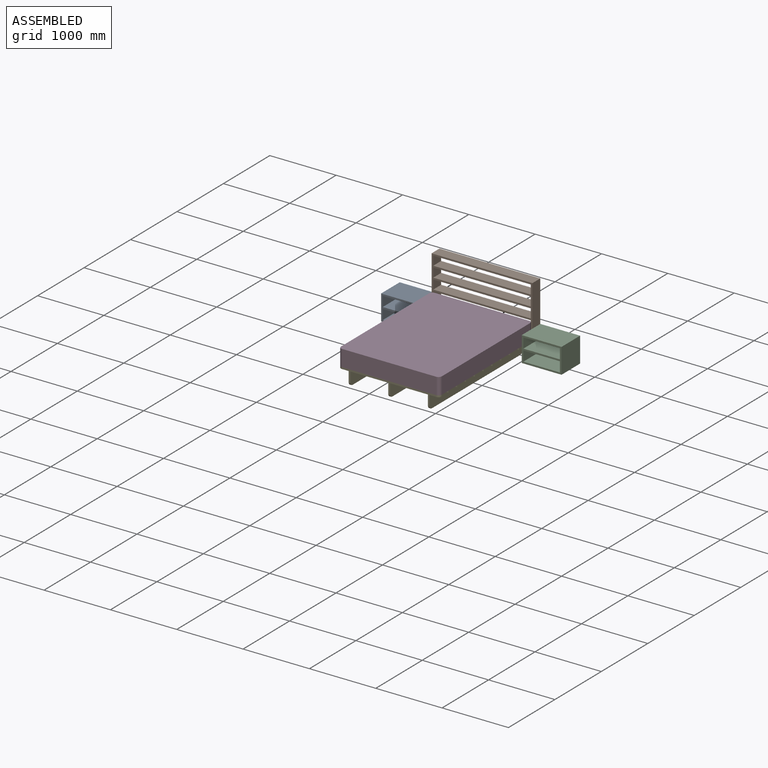
[diagram: assembled view]
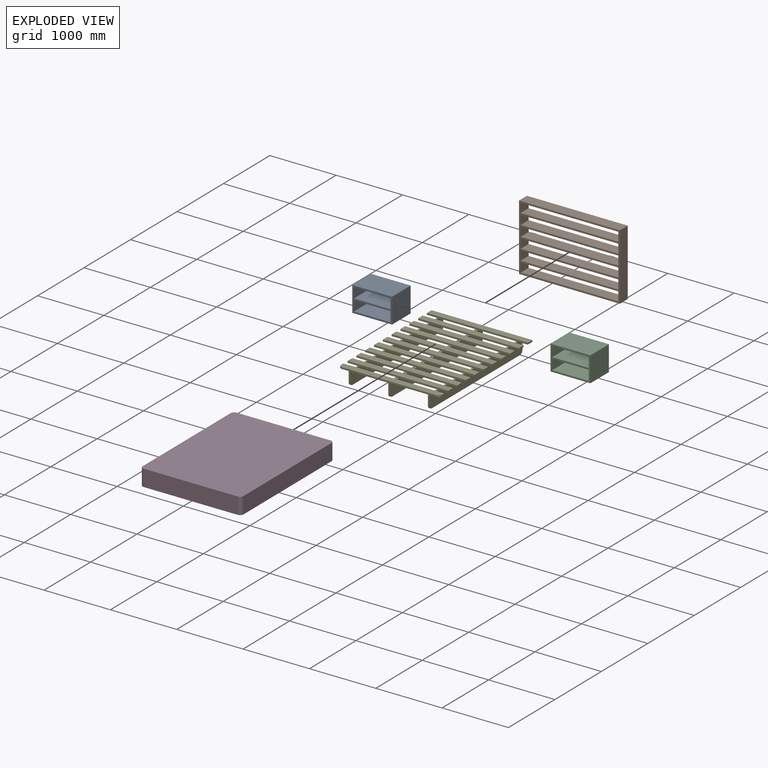
[diagram: exploded view]
GUIDED TOUR — MATED ASSEMBLY (Onshape document 74b17150a2c7d533fe4d1108, AutoMate assembly 74b17150a2c7d533fe4d1108_708a6c6ce49446821fad9053_32d21459e15c9e5dc7a218ed_default)

This assembly has 5 components, labeled P0..P4 below (a component is one placed occurrence of a part; the same part can appear more than once), held together by 10 mates. A mate is a constraint between two components; its type names the relative motion it leaves free:
  FASTENED — locks the two components together rigidly (no relative motion),
  PLANAR — leaves sliding in the plane through the listed point (normal = the listed direction) and rotation about that normal free.
Axis/direction vectors are unit vectors and 'through' points are millimeter coordinates, both in the assembly's world frame.

MATES
  1. PLANAR "Planar 1": P1 <-> P4, direction (0.000, -1.000, 0.000) through (0.00, 1000.00, 300.00) mm
  2. PLANAR "Planar 3": P0 <-> P1, direction (0.000, 1.000, 0.000) through (-1060.00, 1170.00, 155.00) mm
  3. PLANAR "Planar 2": P1 <-> P4, direction (0.000, 0.000, -1.000) through (0.00, 1085.00, -200.00) mm
  4. PLANAR "Planar 4": P4 <-> P0, direction (0.000, 0.000, -1.000) through (-597.50, 0.00, -200.00) mm
  5. PLANAR "Planar 7": P2 <-> P1, direction (0.000, 0.000, -1.000) through (1060.00, 970.00, -200.00) mm
  6. PLANAR "Planar 5": P1 <-> P0, direction (-1.000, 0.000, 0.000) through (-760.00, 1085.00, 300.00) mm
  7. PLANAR "Planar 9": P2 <-> P1, direction (0.000, 1.000, 0.000) through (1060.00, 1170.00, -10.00) mm
  8. PLANAR "Planar 8": P2 <-> P1, direction (-1.000, 0.000, 0.000) through (760.00, 970.00, -10.00) mm
  9. FASTENED "Fastened 1": P3 <-> P4, direction (0.000, -1.000, 0.000) through (-760.00, 950.00, 25.00) mm
  10. PLANAR "Planar 6": P1 <-> P4, direction (-1.000, 0.000, 0.000) through (-760.00, 1000.00, 300.00) mm

ASSEMBLY ORDER
  1. P4 — the base component [order verified]
  2. P3 [order verified]
  3. P1 [order verified]
  4. P2 [order verified]
  5. P0 [order verified]
Order-tag legend:
  [order verified] — this step's position reverses a verified removal order: the component was checked to insert without passing through the ones already placed.

Of the 5 components, 3 carry the full construction recipe — the FeatureScript program that regenerates the part's solid from scratch; the rest are supplied as boundary geometry only.
Each toured component is shown spotlighted twice — in the assembled view, then in the exploded view, where a leader line traces a displaced component back to its assembled socket (saturated green if recipe-attached, orange if geometry-only; every other component desaturated gray) — followed by its recipe or geometry summary and the mates that hold it.
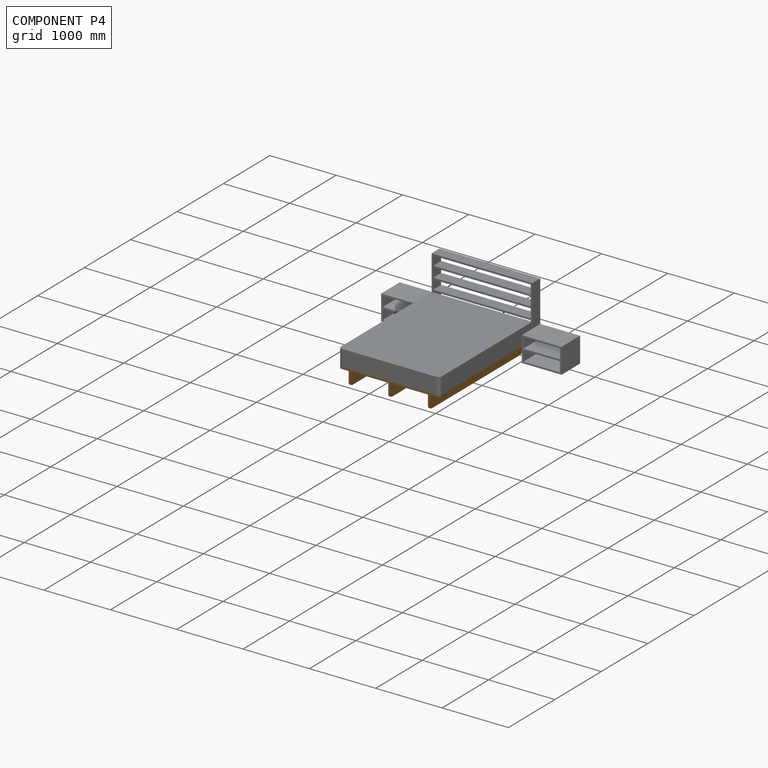
[diagram: component P4 — assembled]
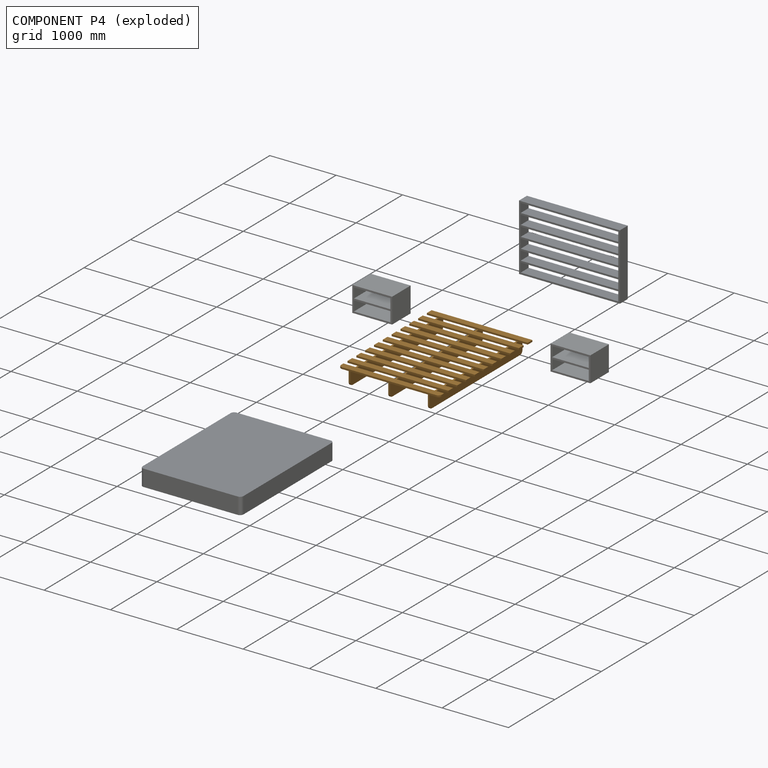
[diagram: component P4 — exploded]
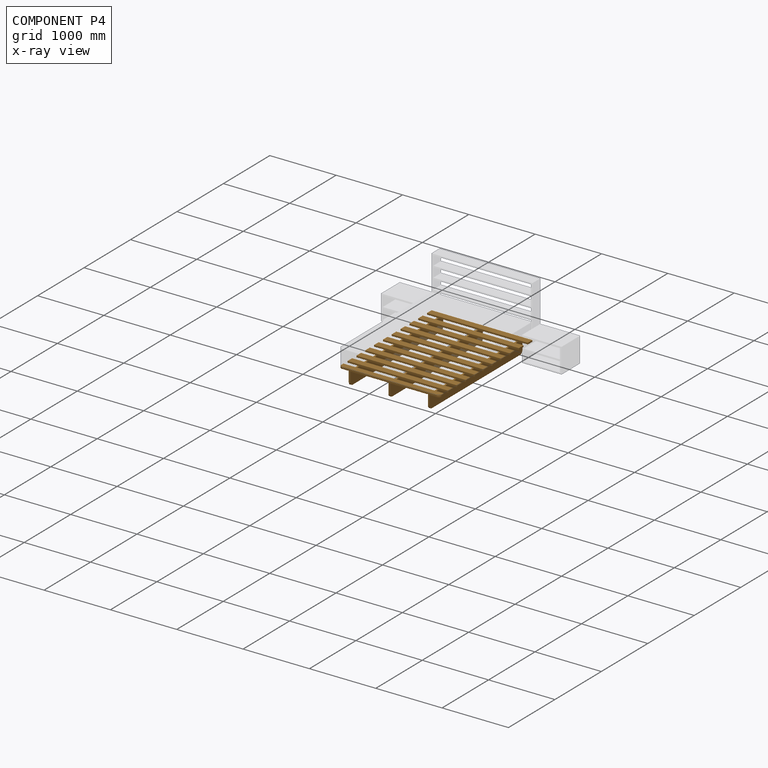
[diagram: component P4 — x-ray view]
COMPONENT P4 — geometry summary (no construction recipe available for this part):
  bounding box: 2000.0 x 1520.0 x 225.0 mm
  B-rep topology: 1 solid, 146 faces, 864 edges
  volume: 71692699 mm^3 (10% of its bounding box)
  symmetry: 2-fold rotationally symmetric about the z axis; mirror-symmetric across its x mid-plane, y mid-plane
Held by: PLANAR mate "Planar 1" to P1; PLANAR mate "Planar 2" to P1; PLANAR mate "Planar 4" to P0; FASTENED mate "Fastened 1" to P3; PLANAR mate "Planar 6" to P1.
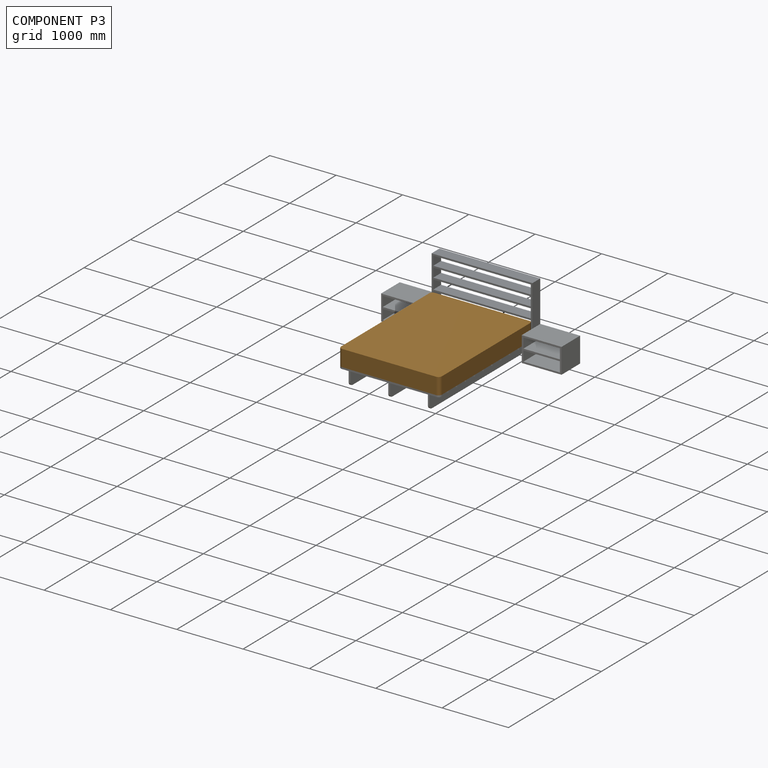
[diagram: component P3 — assembled]
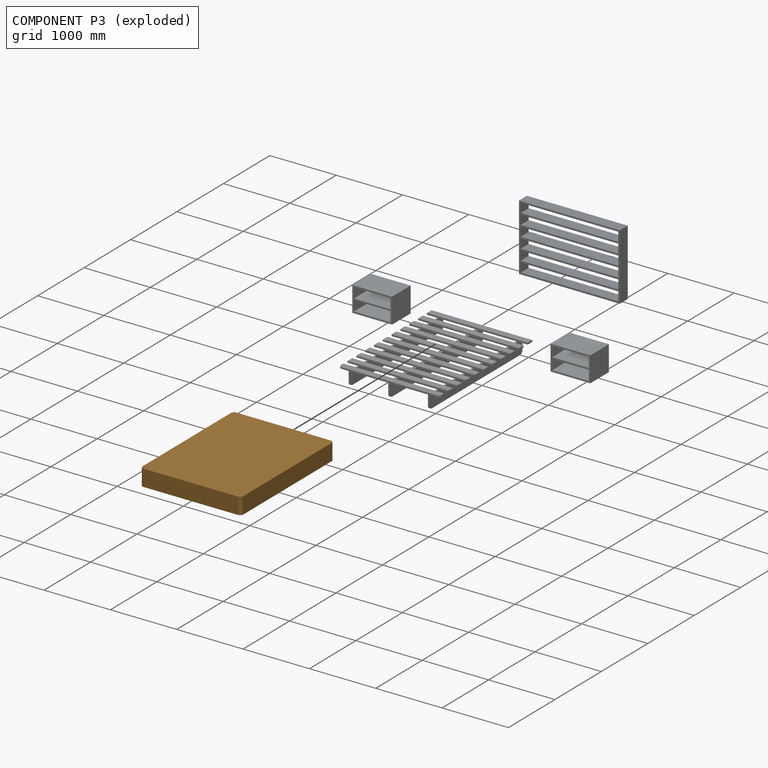
[diagram: component P3 — exploded]
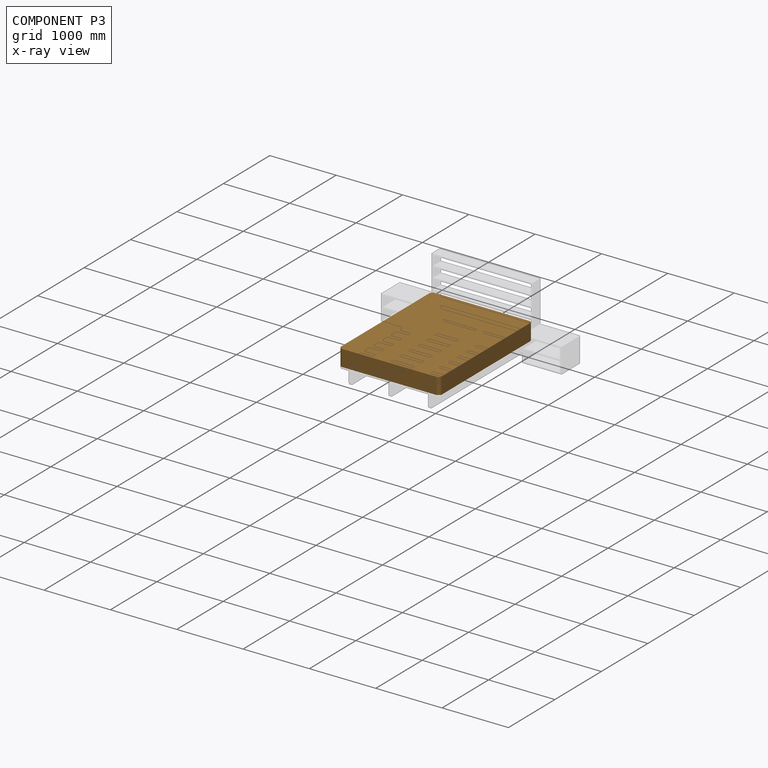
[diagram: component P3 — x-ray view]
COMPONENT P3 — geometry summary (no construction recipe available for this part):
  bounding box: 2000.0 x 1520.0 x 250.0 mm
  B-rep topology: 1 solid, 10 faces, 48 edges
  volume: 759463495 mm^3 (100% of its bounding box)
  symmetry: 2-fold rotationally symmetric about the x axis; 2-fold rotationally symmetric about the y axis; 2-fold rotationally symmetric about the z axis; mirror-symmetric across its x mid-plane, y mid-plane, z mid-plane
Held by: FASTENED mate "Fastened 1" to P4.
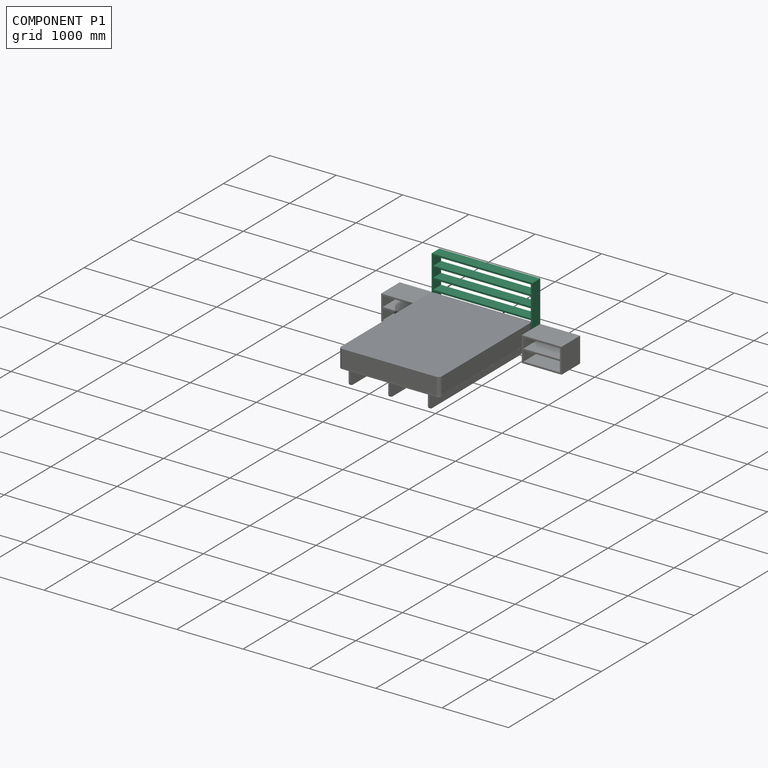
[diagram: component P1 — assembled]
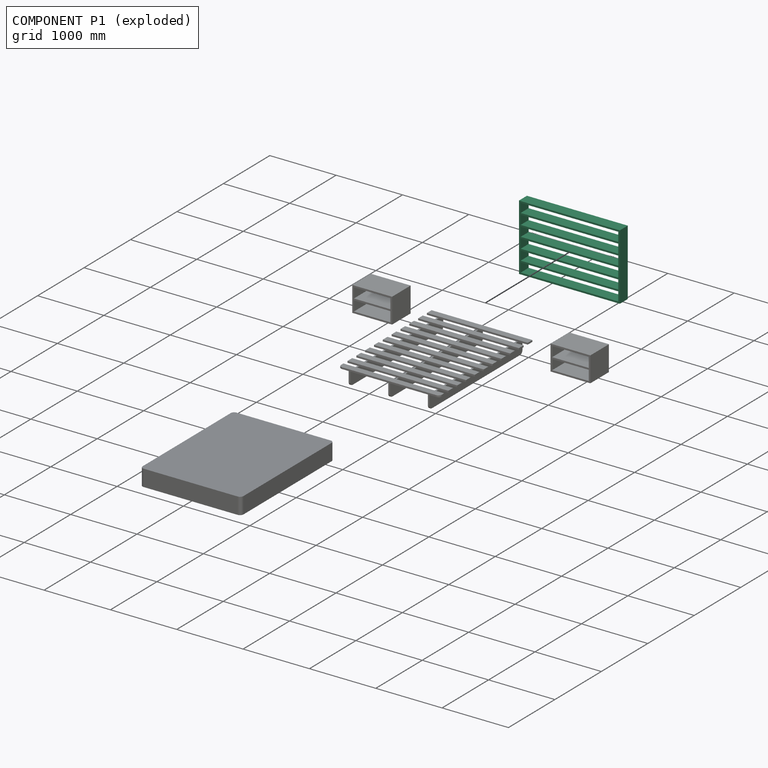
[diagram: component P1 — exploded]
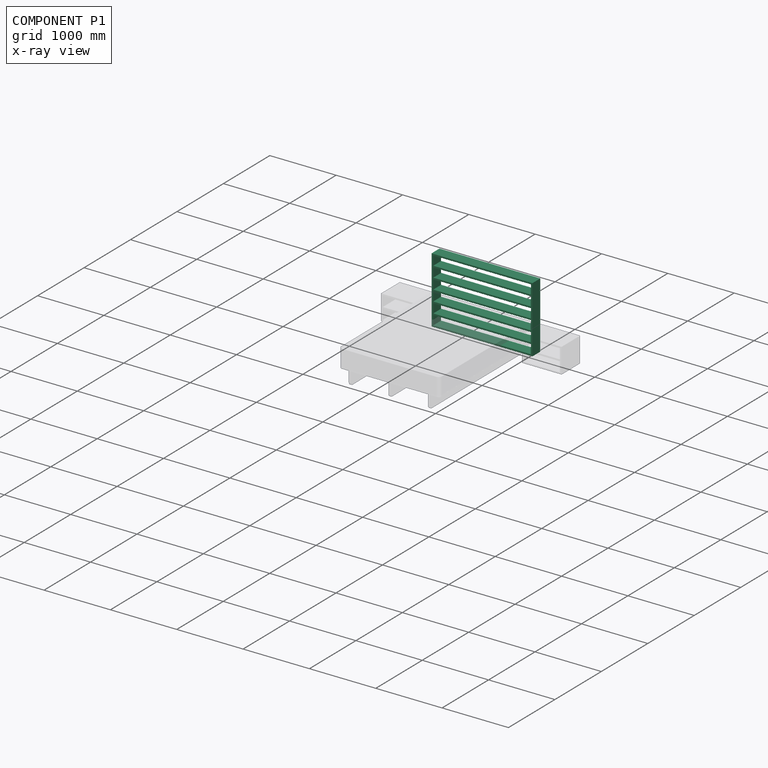
[diagram: component P1 — x-ray view]
COMPONENT P1 — recipe-attached (CADFS 00413520, mesh-verified: the recipe's output STEP matches this component's geometry to below the mesh-comparison resolution (tessellation chordal tolerance ~2.74 mm)).
Held by: PLANAR mate "Planar 1" to P4; PLANAR mate "Planar 3" to P0; PLANAR mate "Planar 2" to P4; PLANAR mate "Planar 7" to P2; PLANAR mate "Planar 5" to P0; PLANAR mate "Planar 9" to P2; PLANAR mate "Planar 8" to P2; PLANAR mate "Planar 6" to P4.
Construction recipe (FeatureScript — the CAD program that rebuilds this solid; sketch coordinates are in the units given by the * unit suffixes, e.g. mm):

FeatureScript 2180;
import(path : "onshape/std/geometry.fs", version : "2180.0");
import(path : "onshape/std/common.fs", version : "2180.0");
const mm = millimeter;
const VERTEX = EntityType.VERTEX;
const EDGE = EntityType.EDGE;
const FACE = EntityType.FACE;
const BODY = EntityType.BODY;
function v(x, y){return vector(x, y);}
function OD(order){return orderDisambiguation(order);}
function OSD(set){return originalSetDisambiguation(set);}
function TD(topology){return topologyDisambiguation(topology);}
function TDD(query){return trueDependencyDisambiguation(query);}
function sQuery(a, b, c) {return sketchEntityQuery(a, b, c);}

annotation { "Feature Type Name" : "Feature", "Feature Type Description" : "" }
export const myFeature = defineFeature(function(context is Context, id is Id, definition is map)
    precondition{}
    {
        {
            var Q0;
            Q0=qCreatedBy(makeId("Front.planeOp"),FACE);
            var sketch = newSketch(context, id + "F0", { "sketchPlane" : qUnion([Q0])});
            skLineSegment(sketch, "E0.bottom", {"start": v(760, 500) * mm, "end": v(-760, 500) * mm});
            skLineSegment(sketch, "E0.top", {"start": v(760, -500) * mm, "end": v(-760, -500) * mm});
            skLineSegment(sketch, "E0.left", {"start": v(760, 500) * mm, "end": v(760, -500) * mm});
            skLineSegment(sketch, "E0.right", {"start": v(-760, 500) * mm, "end": v(-760, -500) * mm});
            skPoint(sketch, "E0.middle", {"position": v(0, 0) * mm});
            skSolve(sketch);
        }
        {
            var Q0;
            Q0=makeQuery(id+"F0.imprint","IMPRINT",FACE,{"disambiguationData":[TD([[makeQuery(id+"F0.imprint","IMPRINT",EDGE,{"derivedFrom":sQuery(id+"F0.wireOp",EDGE,"E0.bottom")}),1.0]])]});
            extrude(context, id + "F1", {"entities" : qUnion([Q0]), "oppositeDirection" : true, "offsetDistance" : 25 * mm, "depth" : 170 * mm});
        }
        {
            var Q0;
            Q0=makeQuery(id+"F1.opExtrude","CAP_FACE",FACE,{"disambiguationData":[OSD([sQuery(id+"F0.wireOp",EDGE,"E0.bottom"),sQuery(id+"F0.wireOp",EDGE,"E0.top"),sQuery(id+"F0.wireOp",EDGE,"E0.left"),sQuery(id+"F0.wireOp",EDGE,"E0.right")])],"isStart":true});
            var sketch = newSketch(context, id + "F2", { "sketchPlane" : qUnion([Q0])});
            skLineSegment(sketch, "E1.bottom", {"start": v(-735, -475) * mm, "end": v(735, -475) * mm});
            skLineSegment(sketch, "E1.left", {"start": v(-735, -475) * mm, "end": v(-735, -337.5) * mm});
            skLineSegment(sketch, "E1.right", {"start": v(735, -475) * mm, "end": v(735, -425) * mm});
            skPoint(sketch, "E2.middle", {"position": v(0, 0) * mm});
            skLineSegment(sketch, "E3", {"start": v(-735, -312.5) * mm, "end": v(-735, -175) * mm});
            skLineSegment(sketch, "E4", {"start": v(-735, 475) * mm, "end": v(735, 475) * mm});
            skLineSegment(sketch, "E5", {"start": v(735, 475) * mm, "end": v(735, 337.5) * mm});
            skLineSegment(sketch, "E6", {"start": v(-735, 0) * mm, "end": v(735, 0) * mm, "construction": true});
            skLineSegment(sketch, "E7", {"start": v(-735, -337.5) * mm, "end": v(735, -337.5) * mm});
            skLineSegment(sketch, "E8", {"start": v(-735, -312.5) * mm, "end": v(735, -312.5) * mm});
            skLineSegment(sketch, "E9", {"start": v(-735, -175) * mm, "end": v(735, -175) * mm});
            skLineSegment(sketch, "E10", {"start": v(-735, -150) * mm, "end": v(735, -150) * mm});
            skLineSegment(sketch, "E11", {"start": v(-735, -12.5) * mm, "end": v(735, -12.5) * mm});
            skLineSegment(sketch, "E12", {"start": v(-735, 12.5) * mm, "end": v(735, 12.5) * mm});
            skLineSegment(sketch, "E13.MirrorCS", {"start": v(-735, 337.5) * mm, "end": v(735, 337.5) * mm});
            skLineSegment(sketch, "E14.MirrorCS", {"start": v(-735, 312.5) * mm, "end": v(735, 312.5) * mm});
            skLineSegment(sketch, "E15.MirrorCS", {"start": v(-735, 150) * mm, "end": v(735, 150) * mm});
            skLineSegment(sketch, "E16.MirrorCS", {"start": v(-735, 175) * mm, "end": v(735, 175) * mm});
            skLineSegment(sketch, "E17.trimOffspring", {"start": v(735, 312.5) * mm, "end": v(735, 175) * mm});
            skLineSegment(sketch, "E18.trimOffspring", {"start": v(-735, 337.5) * mm, "end": v(-735, 475) * mm});
            skLineSegment(sketch, "E19.trimOffspring", {"start": v(-735, 175) * mm, "end": v(-735, 312.5) * mm});
            skLineSegment(sketch, "E20.trimOffspring", {"start": v(-735, 12.5) * mm, "end": v(-735, 150) * mm});
            skLineSegment(sketch, "E21.trimOffspring", {"start": v(-735, -150) * mm, "end": v(-735, -12.5) * mm});
            skLineSegment(sketch, "E22.trimOffspring", {"start": v(735, -337.5) * mm, "end": v(735, -425) * mm});
            skLineSegment(sketch, "E23.trimOffspring", {"start": v(735, -175) * mm, "end": v(735, -312.5) * mm});
            skLineSegment(sketch, "E24.trimOffspring", {"start": v(735, 150) * mm, "end": v(735, 12.5) * mm});
            skLineSegment(sketch, "E25.trimOffspring", {"start": v(735, -12.5) * mm, "end": v(735, -150) * mm});
            skSolve(sketch);
        }
        {
            var Q0;
            Q0=makeQuery(id+"F2.imprint","IMPRINT",FACE,{"disambiguationData":[TD([[makeQuery(id+"F2.imprint","IMPRINT",EDGE,{"derivedFrom":sQuery(id+"F2.wireOp",EDGE,"E4")}),-1.0]])]});
            var Q1;
            Q1=makeQuery(id+"F2.imprint","IMPRINT",FACE,{"disambiguationData":[TD([[makeQuery(id+"F2.imprint","IMPRINT",EDGE,{"derivedFrom":sQuery(id+"F2.wireOp",EDGE,"E14.MirrorCS")}),-1.0]])]});
            var Q2;
            Q2=makeQuery(id+"F2.imprint","IMPRINT",FACE,{"disambiguationData":[TD([[makeQuery(id+"F2.imprint","IMPRINT",EDGE,{"derivedFrom":sQuery(id+"F2.wireOp",EDGE,"E12")}),1.0]])]});
            var Q3;
            Q3=makeQuery(id+"F2.imprint","IMPRINT",FACE,{"disambiguationData":[TD([[makeQuery(id+"F2.imprint","IMPRINT",EDGE,{"derivedFrom":sQuery(id+"F2.wireOp",EDGE,"E10")}),1.0]])]});
            var Q4;
            Q4=makeQuery(id+"F2.imprint","IMPRINT",FACE,{"disambiguationData":[TD([[makeQuery(id+"F2.imprint","IMPRINT",EDGE,{"derivedFrom":sQuery(id+"F2.wireOp",EDGE,"E3")}),-1.0]])]});
            var Q5;
            Q5=makeQuery(id+"F2.imprint","IMPRINT",FACE,{"disambiguationData":[TD([[makeQuery(id+"F2.imprint","IMPRINT",EDGE,{"derivedFrom":sQuery(id+"F2.wireOp",EDGE,"E1.bottom")}),1.0]])]});
            var Q6;
            Q6=makeQuery(id+"F1.opExtrude","CAP_FACE",FACE,{"disambiguationData":[OSD([sQuery(id+"F0.wireOp",EDGE,"E0.bottom"),sQuery(id+"F0.wireOp",EDGE,"E0.top"),sQuery(id+"F0.wireOp",EDGE,"E0.left"),sQuery(id+"F0.wireOp",EDGE,"E0.right")])],"isStart":false});
            extrude(context, id + "F3", {"entities" : qUnion([Q0, Q1, Q2, Q3, Q4, Q5]), "operationType" : NewBodyOperationType.REMOVE, "endBound" : BoundingType.UP_TO_SURFACE, "oppositeDirection" : true, "depth" : 25 * mm, "endBoundEntityFace" : qUnion([Q6]), "offsetDistance" : 25 * mm});
        }
    });
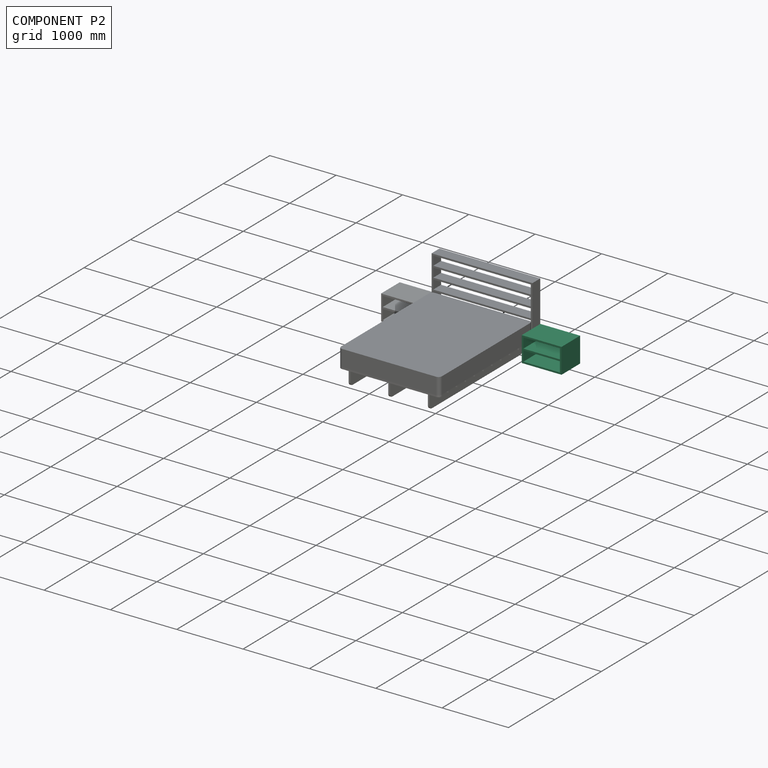
[diagram: component P2 — assembled]
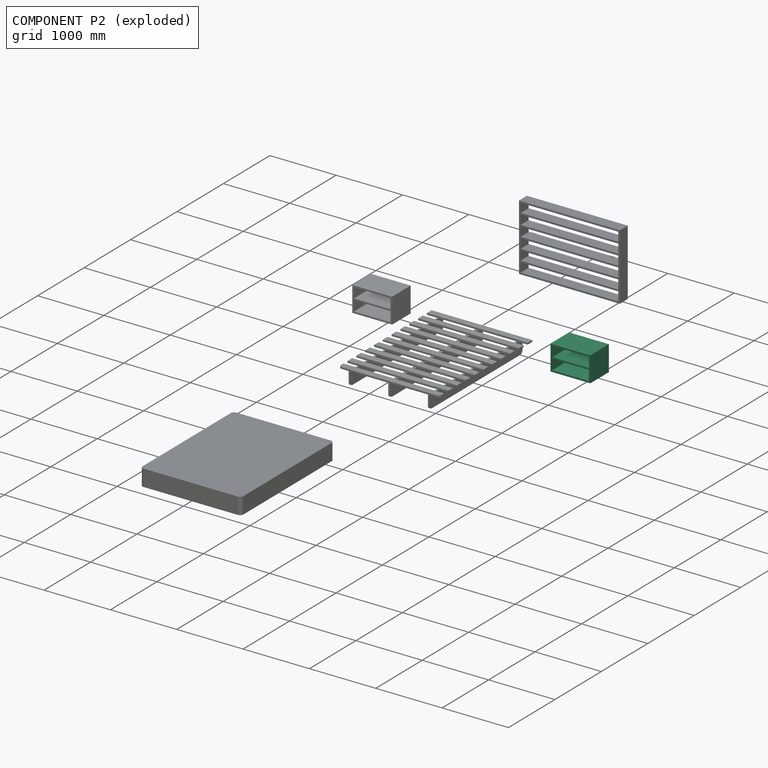
[diagram: component P2 — exploded]
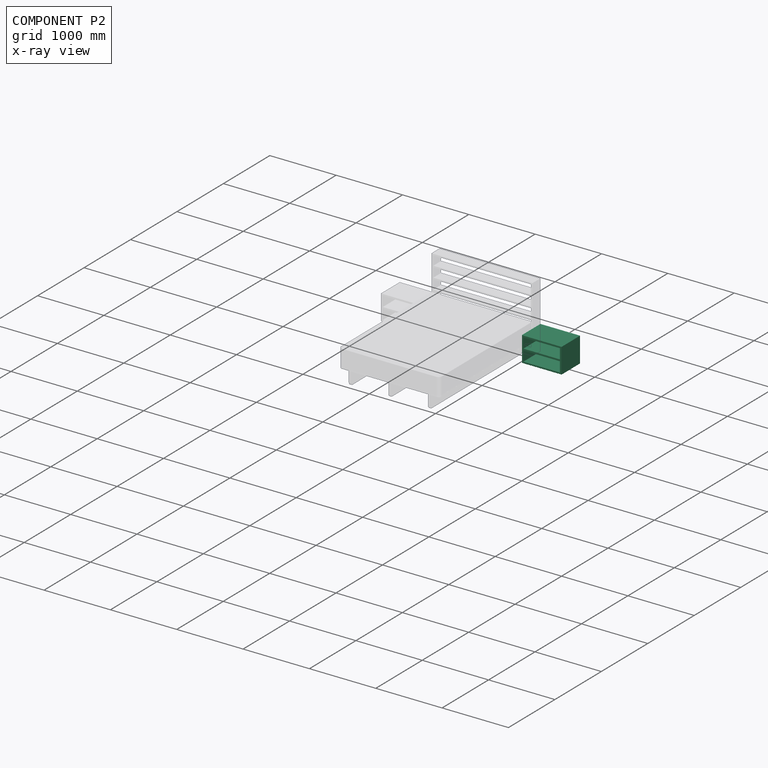
[diagram: component P2 — x-ray view]
COMPONENT P2 — same part as P0 (CADFS 00413517); its construction recipe is shown at P0.
Held by: PLANAR mate "Planar 7" to P1; PLANAR mate "Planar 9" to P1; PLANAR mate "Planar 8" to P1.
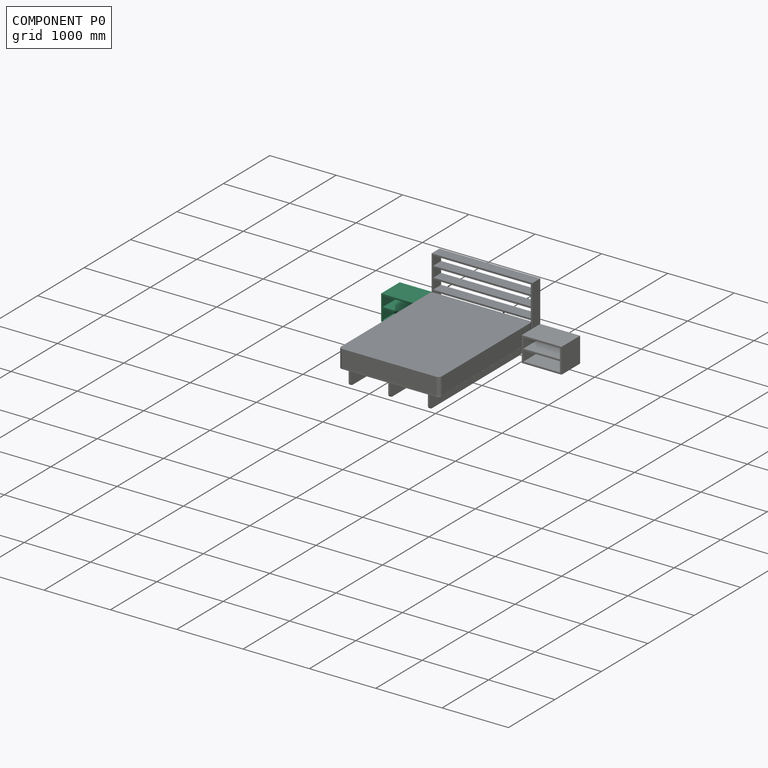
[diagram: component P0 — assembled]
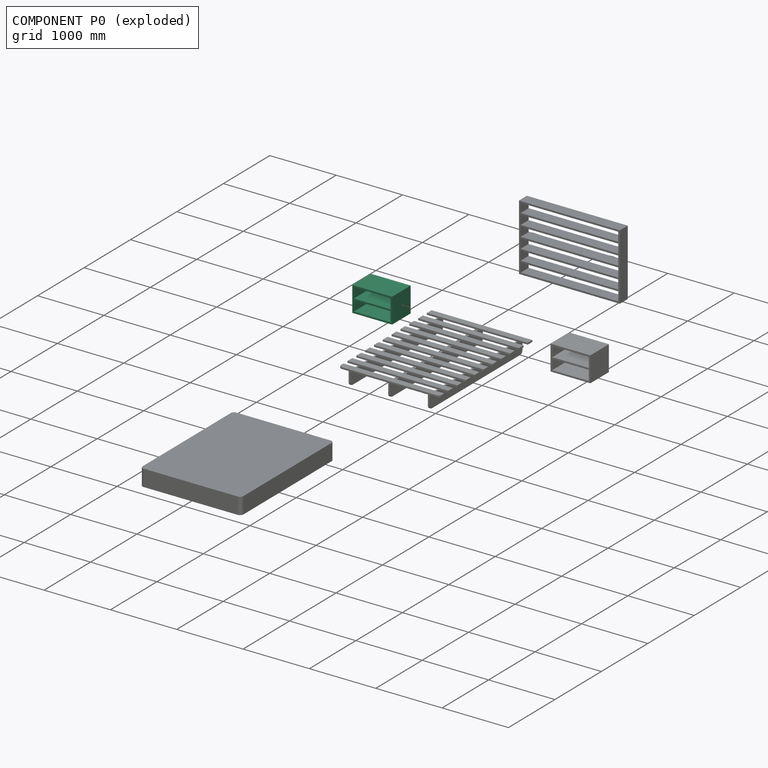
[diagram: component P0 — exploded]
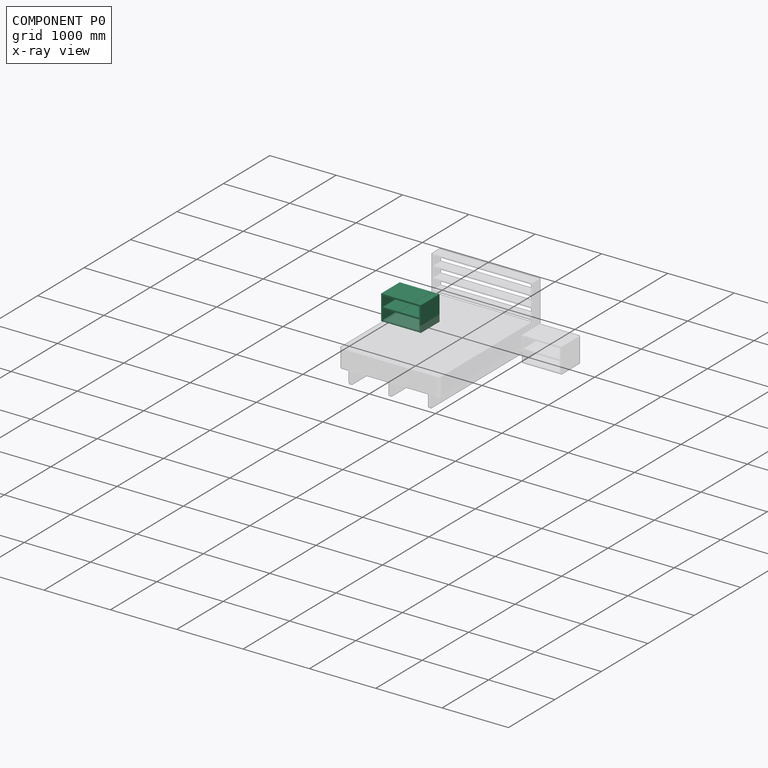
[diagram: component P0 — x-ray view]
COMPONENT P0 — recipe-attached (CADFS 00413517, mesh-verified: the recipe's output STEP matches this component's geometry to below the mesh-comparison resolution (tessellation chordal tolerance ~1.22 mm)).
Held by: PLANAR mate "Planar 3" to P1; PLANAR mate "Planar 4" to P4; PLANAR mate "Planar 5" to P1.
Construction recipe (FeatureScript — the CAD program that rebuilds this solid; sketch coordinates are in the units given by the * unit suffixes, e.g. mm):

FeatureScript 2180;
import(path : "onshape/std/geometry.fs", version : "2180.0");
import(path : "onshape/std/common.fs", version : "2180.0");
const mm = millimeter;
const VERTEX = EntityType.VERTEX;
const EDGE = EntityType.EDGE;
const FACE = EntityType.FACE;
const BODY = EntityType.BODY;
function v(x, y){return vector(x, y);}
function OD(order){return orderDisambiguation(order);}
function OSD(set){return originalSetDisambiguation(set);}
function TD(topology){return topologyDisambiguation(topology);}
function TDD(query){return trueDependencyDisambiguation(query);}
function sQuery(a, b, c) {return sketchEntityQuery(a, b, c);}

annotation { "Feature Type Name" : "Feature", "Feature Type Description" : "" }
export const myFeature = defineFeature(function(context is Context, id is Id, definition is map)
    precondition{}
    {
        {
            var Q0;
            Q0=qCreatedBy(makeId("Front.planeOp"),FACE);
            var sketch = newSketch(context, id + "F0", { "sketchPlane" : qUnion([Q0])});
            skLineSegment(sketch, "E0", {"start": v(0, 380) * mm, "end": v(600, 380) * mm});
            skLineSegment(sketch, "E1", {"start": v(600, 380) * mm, "end": v(600, 0) * mm});
            skLineSegment(sketch, "E2", {"start": v(600, 0) * mm, "end": v(0, 0) * mm});
            skLineSegment(sketch, "E3", {"start": v(0, 0) * mm, "end": v(0, 380) * mm});
            skLineSegment(sketch, "E4", {"start": v(25, 355) * mm, "end": v(25, 25) * mm});
            skLineSegment(sketch, "E5", {"start": v(25, 25) * mm, "end": v(575, 25) * mm});
            skLineSegment(sketch, "E6", {"start": v(575, 25) * mm, "end": v(575, 355) * mm});
            skLineSegment(sketch, "E7", {"start": v(575, 355) * mm, "end": v(25, 355) * mm});
            skLineSegment(sketch, "E8", {"start": v(25, 202.5) * mm, "end": v(575, 202.5) * mm});
            skLineSegment(sketch, "E9", {"start": v(25, 177.5) * mm, "end": v(575, 177.5) * mm});
            skSolve(sketch);
        }
        {
            var Q0;
            Q0=makeQuery(id+"F0.imprint","IMPRINT",FACE,{"disambiguationData":[TD([[makeQuery(id+"F0.imprint","IMPRINT",EDGE,{"derivedFrom":sQuery(id+"F0.wireOp",EDGE,"E0")}),-1.0]])]});
            var Q1;
            Q1=makeQuery(id+"F0.imprint","IMPRINT",FACE,{"disambiguationData":[TD([[makeQuery(id+"F0.imprint","IMPRINT",EDGE,{"derivedFrom":sQuery(id+"F0.wireOp",EDGE,"E4")}),1.0]])]});
            extrude(context, id + "F1", {"entities" : qUnion([Q0, Q1]), "offsetDistance" : 25 * mm, "depth" : 50 * mm});
        }
        {
            var Q0;
            Q0=makeQuery(id+"F0.imprint","IMPRINT",FACE,{"disambiguationData":[TD([[makeQuery(id+"F0.imprint","IMPRINT",EDGE,{"derivedFrom":sQuery(id+"F0.wireOp",EDGE,"E0")}),-1.0]])]});
            extrude(context, id + "F2", {"entities" : qUnion([Q0]), "operationType" : NewBodyOperationType.ADD, "offsetDistance" : 25 * mm, "depth" : 400 * mm});
        }
        {
            var Q0;
            Q0=makeQuery(id+"F1.opExtrude","CAP_FACE",FACE,{"disambiguationData":[OSD([sQuery(id+"F0.wireOp",EDGE,"E0"),sQuery(id+"F0.wireOp",EDGE,"E1"),sQuery(id+"F0.wireOp",EDGE,"E2"),sQuery(id+"F0.wireOp",EDGE,"E3")])],"isStart":false});
            extrude(context, id + "F3", {"entities" : qUnion([Q0]), "operationType" : NewBodyOperationType.REMOVE, "endBound" : BoundingType.THROUGH_ALL, "oppositeDirection" : true, "offsetDistance" : 25 * mm, "depth" : 25 * mm});
        }
        {
            var Q0;
            {var subQ2=sQuery(id+"F0.wireOp",EDGE,"E8");Q0=makeQuery(id+"F0.imprint","IMPRINT",FACE,{"disambiguationData":[TD([[makeQuery(id+"F0.imprint","IMPRINT",EDGE,{"derivedFrom":subQ2}),-1.0]])]});}
            var Q1;
            Q1=makeQuery(id+"F2.opExtrude","CAP_FACE",FACE,{"disambiguationData":[OSD([sQuery(id+"F0.wireOp",EDGE,"E0"),sQuery(id+"F0.wireOp",EDGE,"E1"),sQuery(id+"F0.wireOp",EDGE,"E2"),sQuery(id+"F0.wireOp",EDGE,"E3"),sQuery(id+"F0.wireOp",EDGE,"E4"),sQuery(id+"F0.wireOp",EDGE,"E5"),sQuery(id+"F0.wireOp",EDGE,"E6"),sQuery(id+"F0.wireOp",EDGE,"E7")])],"isStart":false});
            extrude(context, id + "F4", {"entities" : qUnion([Q0]), "operationType" : NewBodyOperationType.ADD, "endBound" : BoundingType.UP_TO_SURFACE, "depth" : 25 * mm, "endBoundEntityFace" : qUnion([Q1]), "offsetDistance" : 25 * mm});
        }
    });
PROVENANCE & LICENSES
Assembly (occurrences, transforms, mates, per-part STEP geometry): AutoMate dataset, Zenodo record 7776208, CC0.
Construction recipes: CADFS (HuggingFace VladPyatov/CADFS, CC-BY-4.0, layered over the ABC dataset), FeatureScript reconstruction programs keyed by ABC model id.
Join: ABC meta listings map ABC model id -> Onshape documentId; within a shared document, parts are matched by geometric signature (bounding-box dims + volume at 0.1% relative tolerance, exact B-rep face/solid counts).
Verification: 3 of this assembly's 5 components carry a recipe attachment, and every attachment is mesh-verified: the CADFS STEP and the AutoMate member STEP were compared as meshes in their shared local frame (symmetric sampled-point-to-mesh distance); worst across the 3 attachments: below the mesh-comparison resolution (tessellation chordal tolerance ~2.74 mm) on a 1827 mm part.
Renders: orthographic iso camera (az 35 / el 25); the floor grid conveys scale (grid pitch printed in each image; no ruler). In the exploded view each component is displaced by its stored offset vector: the offsets alone carry the explosion direction (mate normal/axis signs are not orientation cues and do not encode it), and separation distances are assigned per mate-chain, not proportionally to assembly-order depth.
